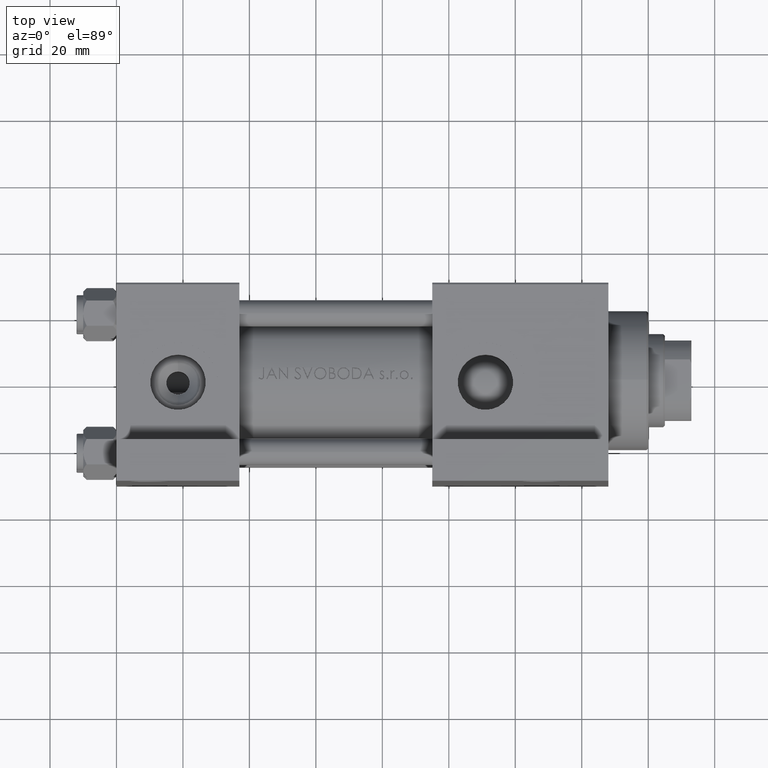
[diagram: clean part render]
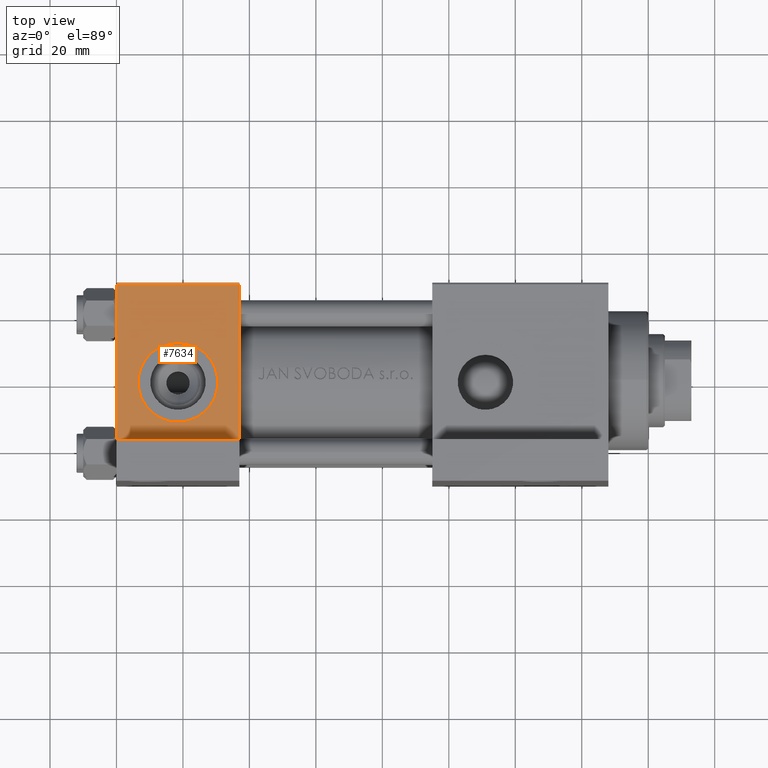
[diagram: same view with one face highlighted and labeled with its STEP entity id]
A machine part, top view. The second image highlights one B-rep face of the part: STEP entity #7634.
In plain terms, the highlighted planar face has unit normal (0, 0, -1).
Its self-contained STEP definition (entity closure, byte-faithful):
#484 = DIRECTION ( 'NONE',  ( 0.000000000000000000, -1.000000000000000000, -8.673617379884036705E-17 ) ) ;
#891 = ORIENTED_EDGE ( 'NONE', *, *, #11812, .F. ) ;
#6535 = AXIS2_PLACEMENT_3D ( 'NONE', #26359, #45570, #45319 ) ;
#6767 = CARTESIAN_POINT ( 'NONE',  ( -7.145701223179007990E-16, -29.99999999999999645, -17.49999999999999645 ) ) ;
#6888 = EDGE_CURVE ( 'NONE', #45962, #42177, #24200, .T. ) ;
#7450 = CARTESIAN_POINT ( 'NONE',  ( 18.50000000000000000, -30.00000000000000000, -12.00000000000000178 ) ) ;
#7634 = ADVANCED_FACE ( 'NONE', ( #45072, #49311 ), #30352, .F. ) ;
#8043 = EDGE_CURVE ( 'NONE', #36165, #26723, #38367, .T. ) ;
#8479 = DIRECTION ( 'NONE',  ( 0.000000000000000000, 0.000000000000000000, -1.000000000000000000 ) ) ;
#9579 = EDGE_LOOP ( 'NONE', ( #47431, #29713 ) ) ;
#11812 = EDGE_CURVE ( 'NONE', #22042, #24943, #23650, .T. ) ;
#12532 = VECTOR ( 'NONE', #14386, 1000.000000000000000 ) ;
#14386 = DIRECTION ( 'NONE',  ( -1.000000000000000000, 0.000000000000000000, 0.000000000000000000 ) ) ;
#14516 = AXIS2_PLACEMENT_3D ( 'NONE', #20797, #20548, #21042 ) ;
#16471 = CIRCLE ( 'NONE', #25219, 12.00000000000000178 ) ;
#19233 = VECTOR ( 'NONE', #31948, 1000.000000000000000 ) ;
#19399 = LINE ( 'NONE', #34605, #49156 ) ;
#19636 = DIRECTION ( 'NONE',  ( -1.000000000000000000, 9.376883653928687363E-17, 0.000000000000000000 ) ) ;
#19939 = CARTESIAN_POINT ( 'NONE',  ( 18.50000000000000000, -30.00000000000000000, 0.000000000000000000 ) ) ;
#20548 = DIRECTION ( 'NONE',  ( 0.000000000000000000, -1.000000000000000000, -8.673617379884036705E-17 ) ) ;
#20797 = CARTESIAN_POINT ( 'NONE',  ( 18.50000000000000000, -30.00000000000000000, 0.000000000000000000 ) ) ;
#21042 = DIRECTION ( 'NONE',  ( 0.000000000000000000, 0.000000000000000000, -1.000000000000000000 ) ) ;
#22042 = VERTEX_POINT ( 'NONE', #40524 ) ;
#23410 = VECTOR ( 'NONE', #39618, 1000.000000000000000 ) ;
#23607 = EDGE_LOOP ( 'NONE', ( #25455, #891, #40691, #26479 ) ) ;
#23650 = LINE ( 'NONE', #24405, #23410 ) ;
#24200 = LINE ( 'NONE', #35677, #19233 ) ;
#24405 = CARTESIAN_POINT ( 'NONE',  ( 37.00000000000000000, -30.00000000000000000, 29.99999999999999289 ) ) ;
#24943 = VERTEX_POINT ( 'NONE', #29225 ) ;
#25219 = AXIS2_PLACEMENT_3D ( 'NONE', #19939, #484, #8479 ) ;
#25455 = ORIENTED_EDGE ( 'NONE', *, *, #45345, .F. ) ;
#26232 = CARTESIAN_POINT ( 'NONE',  ( 18.50000000000000000, -30.00000000000000000, 12.00000000000000178 ) ) ;
#26359 = CARTESIAN_POINT ( 'NONE',  ( 37.00000000000000000, -30.00000000000000000, 29.99999999999999289 ) ) ;
#26479 = ORIENTED_EDGE ( 'NONE', *, *, #6888, .T. ) ;
#26723 = VERTEX_POINT ( 'NONE', #7450 ) ;
#29225 = CARTESIAN_POINT ( 'NONE',  ( 37.00000000000000000, -30.00000000000000000, -17.49999999999999645 ) ) ;
#29713 = ORIENTED_EDGE ( 'NONE', *, *, #8043, .F. ) ;
#30352 = PLANE ( 'NONE',  #6535 ) ;
#31253 = CARTESIAN_POINT ( 'NONE',  ( 0.000000000000000000, -30.00000000000000000, 29.49999999999999289 ) ) ;
#31948 = DIRECTION ( 'NONE',  ( 0.000000000000000000, 0.000000000000000000, -1.000000000000000000 ) ) ;
#34605 = CARTESIAN_POINT ( 'NONE',  ( -7.145701223179007004E-16, -30.00000000000000355, -17.49999999999999289 ) ) ;
#35677 = CARTESIAN_POINT ( 'NONE',  ( 0.000000000000000000, -30.00000000000000000, 29.99999999999999289 ) ) ;
#36165 = VERTEX_POINT ( 'NONE', #26232 ) ;
#38367 = CIRCLE ( 'NONE', #14516, 12.00000000000000178 ) ;
#39618 = DIRECTION ( 'NONE',  ( 0.000000000000000000, 0.000000000000000000, -1.000000000000000000 ) ) ;
#40524 = CARTESIAN_POINT ( 'NONE',  ( 37.00000000000000000, -30.00000000000000000, 29.49999999999999289 ) ) ;
#40557 = LINE ( 'NONE', #48540, #12532 ) ;
#40691 = ORIENTED_EDGE ( 'NONE', *, *, #44894, .T. ) ;
#42177 = VERTEX_POINT ( 'NONE', #6767 ) ;
#44354 = EDGE_CURVE ( 'NONE', #26723, #36165, #16471, .T. ) ;
#44894 = EDGE_CURVE ( 'NONE', #22042, #45962, #40557, .T. ) ;
#45072 = FACE_BOUND ( 'NONE', #9579, .T. ) ;
#45319 = DIRECTION ( 'NONE',  ( 0.000000000000000000, -0.000000000000000000, 1.000000000000000000 ) ) ;
#45345 = EDGE_CURVE ( 'NONE', #24943, #42177, #19399, .T. ) ;
#45570 = DIRECTION ( 'NONE',  ( -0.000000000000000000, 1.000000000000000000, 0.000000000000000000 ) ) ;
#45962 = VERTEX_POINT ( 'NONE', #31253 ) ;
#47431 = ORIENTED_EDGE ( 'NONE', *, *, #44354, .F. ) ;
#48540 = CARTESIAN_POINT ( 'NONE',  ( 37.00000000000000000, -30.00000000000000000, 29.49999999999999289 ) ) ;
#49156 = VECTOR ( 'NONE', #19636, 1000.000000000000000 ) ;
#49311 = FACE_OUTER_BOUND ( 'NONE', #23607, .T. ) ;